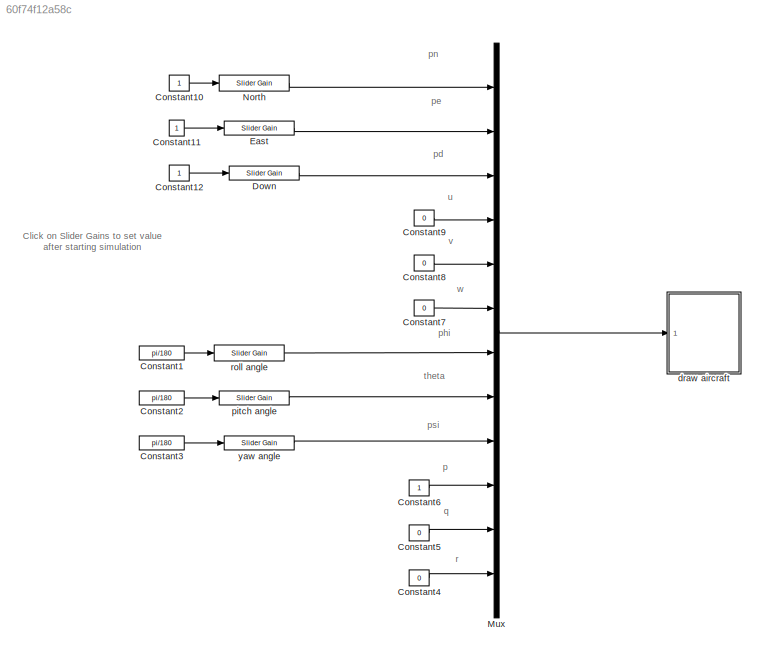
MODEL slx_60f74f12a58c
KIND model
CONFIG AbsTol = auto
CONFIG EnableMultiTasking = on
CONFIG FixedStep = .1
CONFIG MaxStep = auto
CONFIG MinStep = auto
CONFIG RelTol = 1e-3
CONFIG SampleTimeConstraint = Unconstrained
CONFIG Solver = FixedStepDiscrete
CONFIG SolverName = FixedStepDiscrete
CONFIG StartTime = 0.0
CONFIG StopTime = 10000
BLOCK [Constant] Constant1
  Value = pi/180
BLOCK [Constant] Constant10
BLOCK [Constant] Constant11
BLOCK [Constant] Constant12
BLOCK [Constant] Constant2
  Value = pi/180
BLOCK [Constant] Constant3
  Value = pi/180
BLOCK [Constant] Constant4
  Value = 0
BLOCK [Constant] Constant5
  Value = 0
BLOCK [Constant] Constant6
BLOCK [Constant] Constant7
  Value = 0
BLOCK [Constant] Constant8
  Value = 0
BLOCK [Constant] Constant9
  Value = 0
BLOCK [Reference] Down  REF=simulink/Math
Operations/Slider
Gain
  Ports = [1, 1]
  SourceBlock = simulink/Math\nOperations/Slider\nGain
  SourceProductBaseCode = SL
  SourceProductName = Simulink
  SourceType = Slider Gain
BLOCK [Reference] East  REF=simulink/Math
Operations/Slider
Gain
  Ports = [1, 1]
  SourceBlock = simulink/Math\nOperations/Slider\nGain
  SourceProductBaseCode = SL
  SourceProductName = Simulink
  SourceType = Slider Gain
BLOCK [Mux] Mux
  DisplayOption = bar
  Inputs = 12
  Ports = [12, 1]
BLOCK [Reference] North  REF=simulink/Math
Operations/Slider
Gain
  Ports = [1, 1]
  SourceBlock = simulink/Math\nOperations/Slider\nGain
  SourceProductBaseCode = SL
  SourceProductName = Simulink
  SourceType = Slider Gain
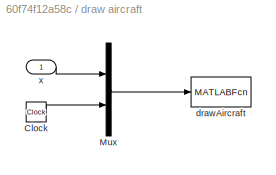
BLOCK [SubSystem] draw aircraft
  Ports = [1]
  RequestExecContextInheritance = off
BLOCK [Clock] draw aircraft/Clock
BLOCK [Mux] draw aircraft/Mux
  DisplayOption = bar
  Inputs = 2
  Ports = [2, 1]
BLOCK [MATLABFcn] draw aircraft/drawAircraft
  MATLABFcn = drawAircraft(u)
  OutputDimensions = 0
  Ports = [1]
  SampleTime = 0.1
BLOCK [Inport] draw aircraft/x
  IconDisplay = Port number
BLOCK [Reference] pitch angle  REF=simulink/Math
Operations/Slider
Gain
  Ports = [1, 1]
  SourceBlock = simulink/Math\nOperations/Slider\nGain
  SourceProductBaseCode = SL
  SourceProductName = Simulink
  SourceType = Slider Gain
BLOCK [Reference] roll angle  REF=simulink/Math
Operations/Slider
Gain
  Ports = [1, 1]
  SourceBlock = simulink/Math\nOperations/Slider\nGain
  SourceProductBaseCode = SL
  SourceProductName = Simulink
  SourceType = Slider Gain
BLOCK [Reference] yaw angle   REF=simulink/Math
Operations/Slider
Gain
  Ports = [1, 1]
  SourceBlock = simulink/Math\nOperations/Slider\nGain
  SourceProductBaseCode = SL
  SourceProductName = Simulink
  SourceType = Slider Gain
ANNOTATION (root): Click on Slider Gains to set value after starting simulation
ANNOTATION (root): p
ANNOTATION (root): pd
ANNOTATION (root): pe
ANNOTATION (root): phi
ANNOTATION (root): pn
ANNOTATION (root): psi
ANNOTATION (root): q
ANNOTATION (root): r
ANNOTATION (root): theta
ANNOTATION (root): u
ANNOTATION (root): v
ANNOTATION (root): w
LINE Constant10:1 -> North:1
LINE Constant11:1 -> East:1
LINE Constant12:1 -> Down:1
LINE Constant1:1 -> roll angle:1
LINE Constant2:1 -> pitch angle:1
LINE Constant3:1 -> yaw angle :1
LINE Constant4:1 -> Mux:12
LINE Constant5:1 -> Mux:11
LINE Constant6:1 -> Mux:10
LINE Constant7:1 -> Mux:6
LINE Constant8:1 -> Mux:5
LINE Constant9:1 -> Mux:4
LINE Down:1 -> Mux:3
LINE East:1 -> Mux:2
LINE Mux:1 -> draw aircraft:1
LINE North:1 -> Mux:1
LINE draw aircraft/Clock:1 -> draw aircraft/Mux:2
LINE draw aircraft/Mux:1 -> draw aircraft/drawAircraft:1
LINE draw aircraft/x:1 -> draw aircraft/Mux:1
LINE pitch angle:1 -> Mux:8
LINE roll angle:1 -> Mux:7
LINE yaw angle :1 -> Mux:9
